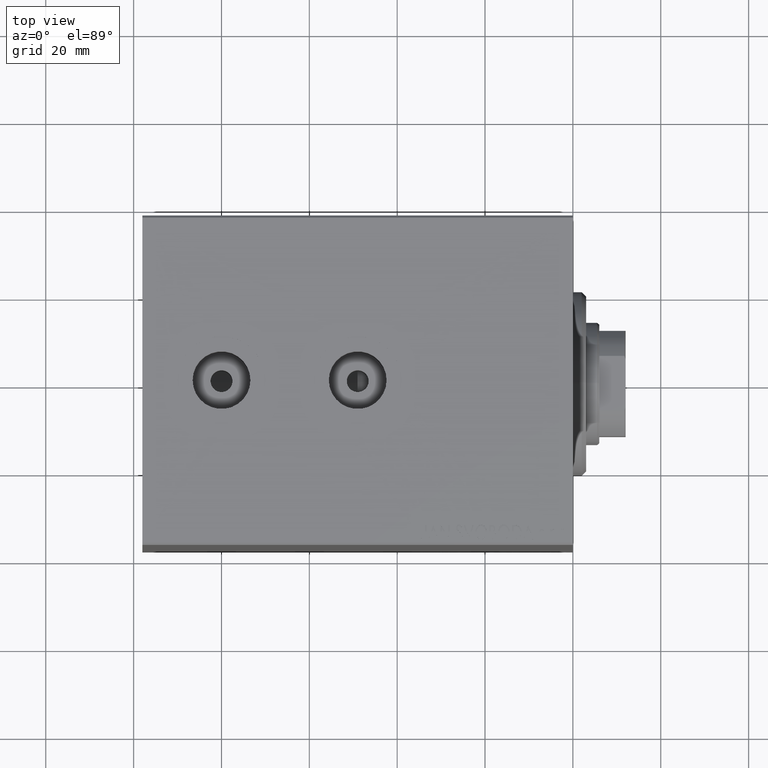
[diagram: clean part render]
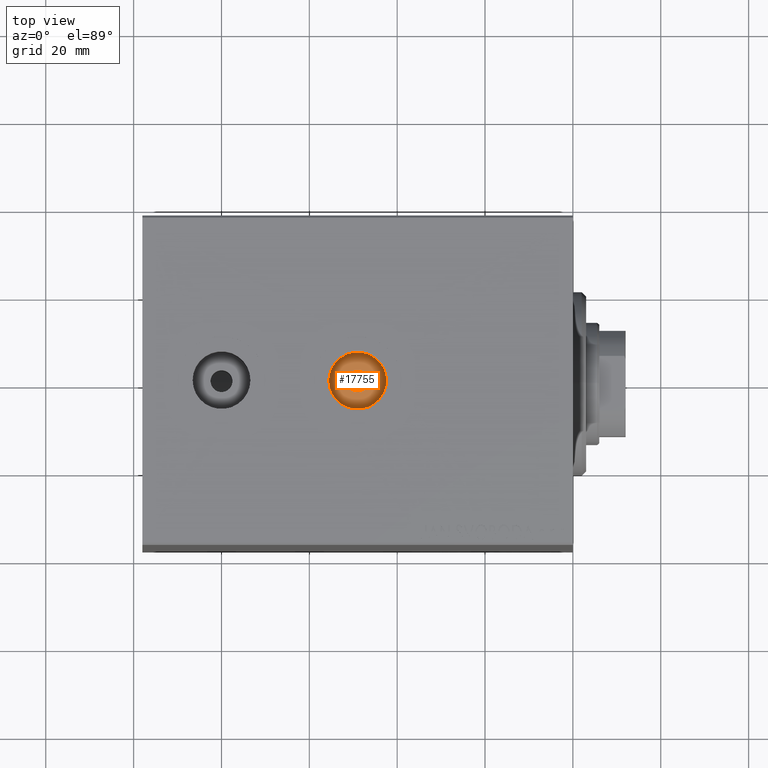
[diagram: same view with one face highlighted and labeled with its STEP entity id]
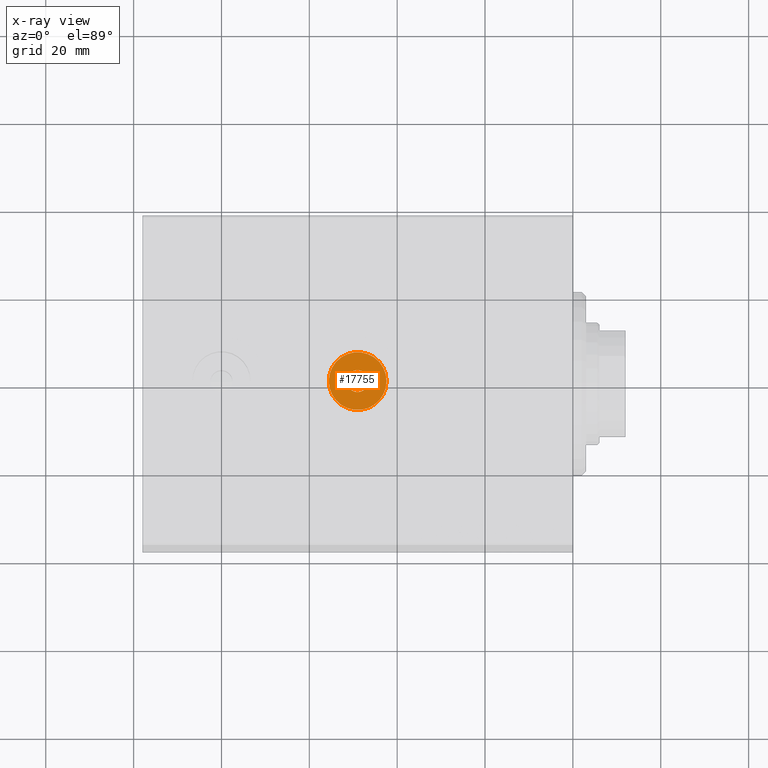
[diagram: x-ray of the same camera — body ghosted, the highlighted face saturated]
A machine part, top view. The second image highlights one B-rep face of the part: STEP entity #17755.
The next image is the same camera in x-ray: the body ghosted, the highlighted face saturated — about 0% of this face is hidden behind the body in this view.
In plain terms, the highlighted planar face has unit normal (-0, 0, 1).
Its self-contained STEP definition (entity closure, byte-faithful):
#2037 = FACE_OUTER_BOUND ( 'NONE', #16557, .T. ) ;
#2690 = AXIS2_PLACEMENT_3D ( 'NONE', #35369, #33081, #22410 ) ;
#2789 = AXIS2_PLACEMENT_3D ( 'NONE', #20001, #37281, #30023 ) ;
#3224 = EDGE_CURVE ( 'NONE', #44630, #8130, #7638, .T. ) ;
#3225 = AXIS2_PLACEMENT_3D ( 'NONE', #9808, #19827, #43731 ) ;
#3497 = ORIENTED_EDGE ( 'NONE', *, *, #3224, .F. ) ;
#3989 = CARTESIAN_POINT ( 'NONE',  ( 55.58000000000000540, 3.840446543403060105E-15, -37.00000000000000711 ) ) ;
#4978 = VERTEX_POINT ( 'NONE', #3989 ) ;
#7638 = CIRCLE ( 'NONE', #3225, 2.500000000000002220 ) ;
#8130 = VERTEX_POINT ( 'NONE', #12169 ) ;
#9808 = CARTESIAN_POINT ( 'NONE',  ( 49.00000000000000000, 3.034628949564101458E-15, -37.00000000000000711 ) ) ;
#10872 = DIRECTION ( 'NONE',  ( -1.000000000000000000, 0.000000000000000000, 0.000000000000000000 ) ) ;
#11057 = CARTESIAN_POINT ( 'NONE',  ( 42.42000000000000171, 3.034628949564101458E-15, -37.00000000000000711 ) ) ;
#11321 = DIRECTION ( 'NONE',  ( 0.000000000000000000, 0.000000000000000000, -1.000000000000000000 ) ) ;
#12169 = CARTESIAN_POINT ( 'NONE',  ( 51.50000000000000711, 3.340790649350939722E-15, -37.00000000000000711 ) ) ;
#14415 = EDGE_CURVE ( 'NONE', #4978, #30737, #36147, .T. ) ;
#15124 = ORIENTED_EDGE ( 'NONE', *, *, #18007, .T. ) ;
#16557 = EDGE_LOOP ( 'NONE', ( #15124, #29078 ) ) ;
#17478 = CARTESIAN_POINT ( 'NONE',  ( 49.00000000000000000, 3.034628949564101458E-15, -37.00000000000000711 ) ) ;
#17755 = ADVANCED_FACE ( 'NONE', ( #25283, #2037 ), #37065, .T. ) ;
#18007 = EDGE_CURVE ( 'NONE', #30737, #4978, #42777, .T. ) ;
#19827 = DIRECTION ( 'NONE',  ( 0.000000000000000000, 0.000000000000000000, -1.000000000000000000 ) ) ;
#20001 = CARTESIAN_POINT ( 'NONE',  ( 49.00000000000000000, 3.034628949564101458E-15, -37.00000000000000711 ) ) ;
#21691 = CIRCLE ( 'NONE', #30383, 2.500000000000002220 ) ;
#21838 = DIRECTION ( 'NONE',  ( -1.000000000000000000, 0.000000000000000000, 0.000000000000000000 ) ) ;
#22410 = DIRECTION ( 'NONE',  ( -1.000000000000000000, 0.000000000000000000, 0.000000000000000000 ) ) ;
#23158 = AXIS2_PLACEMENT_3D ( 'NONE', #29473, #43585, #21838 ) ;
#25283 = FACE_BOUND ( 'NONE', #43942, .T. ) ;
#27512 = ORIENTED_EDGE ( 'NONE', *, *, #34517, .F. ) ;
#29078 = ORIENTED_EDGE ( 'NONE', *, *, #14415, .T. ) ;
#29473 = CARTESIAN_POINT ( 'NONE',  ( 49.00000000000000000, 3.034628949564101458E-15, -37.00000000000000711 ) ) ;
#30023 = DIRECTION ( 'NONE',  ( -1.000000000000000000, 0.000000000000000000, -0.000000000000000000 ) ) ;
#30383 = AXIS2_PLACEMENT_3D ( 'NONE', #17478, #11321, #10872 ) ;
#30737 = VERTEX_POINT ( 'NONE', #11057 ) ;
#33081 = DIRECTION ( 'NONE',  ( 0.000000000000000000, 0.000000000000000000, -1.000000000000000000 ) ) ;
#34091 = CARTESIAN_POINT ( 'NONE',  ( 46.50000000000000000, 3.034628949564101458E-15, -37.00000000000000711 ) ) ;
#34517 = EDGE_CURVE ( 'NONE', #8130, #44630, #21691, .T. ) ;
#35369 = CARTESIAN_POINT ( 'NONE',  ( 49.00000000000000000, 3.034628949564101458E-15, -37.00000000000000711 ) ) ;
#36147 = CIRCLE ( 'NONE', #2690, 6.580000000000002736 ) ;
#37065 = PLANE ( 'NONE',  #2789 ) ;
#37281 = DIRECTION ( 'NONE',  ( 0.000000000000000000, 0.000000000000000000, -1.000000000000000000 ) ) ;
#42777 = CIRCLE ( 'NONE', #23158, 6.580000000000002736 ) ;
#43585 = DIRECTION ( 'NONE',  ( 0.000000000000000000, 0.000000000000000000, -1.000000000000000000 ) ) ;
#43731 = DIRECTION ( 'NONE',  ( -1.000000000000000000, 0.000000000000000000, 0.000000000000000000 ) ) ;
#43942 = EDGE_LOOP ( 'NONE', ( #3497, #27512 ) ) ;
#44630 = VERTEX_POINT ( 'NONE', #34091 ) ;